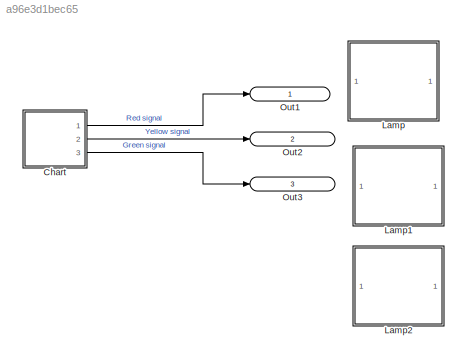
MODEL slx_a96e3d1bec65
KIND model
CONFIG AbsTol = auto
CONFIG FixedStep = auto
CONFIG MaxStep = auto
CONFIG MinStep = auto
CONFIG RelTol = 1e-3
CONFIG SampleTimeConstraint = Unconstrained
CONFIG Solver = VariableStepAuto
CONFIG SolverMode = Auto
CONFIG SolverName = VariableStepAuto
CONFIG StartTime = 0.0
CONFIG StopTime = 10.0
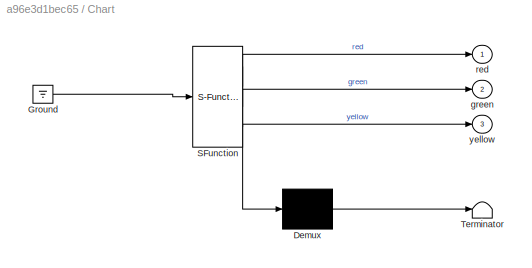
BLOCK [SubSystem] Chart
  ErrorFcn = Stateflow.Translate.translate
  PermitHierarchicalResolution = ExplicitOnly
  Ports = [0, 3]
  RequestExecContextInheritance = off
  SFBlockType = Chart
  TreatAsAtomicUnit = on
  Variant = off
BLOCK [Demux] Chart/ Demux 
  Outputs = 1
  Ports = [1, 1]
BLOCK [Ground] Chart/ Ground 
BLOCK [S-Function] Chart/ SFunction 
  EnableBusSupport = on
  FunctionName = sf_sfun
  PortCounts = [1 4]
  Ports = [1, 4]
  SFunctionDeploymentMode = off
  Tag = Stateflow S-Function trafficstateflow 3
BLOCK [Terminator] Chart/ Terminator 
BLOCK [Outport] Chart/green
  IconDisplay = Port number
  Port = 2
BLOCK [Outport] Chart/red
  IconDisplay = Port number
BLOCK [Outport] Chart/yellow
  IconDisplay = Port number
  Port = 3
BLOCK [SubSystem] Lamp
  DialogController = hmiCreateDDGDialog
  IsWebBlock = on
  MaskHideContents = on
  Ports = []
  RequestExecContextInheritance = off
  Variant = off
BLOCK [SubSystem] Lamp1
  DialogController = hmiCreateDDGDialog
  IsWebBlock = on
  MaskHideContents = on
  Ports = []
  RequestExecContextInheritance = off
  Variant = off
BLOCK [SubSystem] Lamp2
  DialogController = hmiCreateDDGDialog
  IsWebBlock = on
  MaskHideContents = on
  Ports = []
  RequestExecContextInheritance = off
  Variant = off
BLOCK [Outport] Out1
  IconDisplay = Signal name
  OutDataTypeStr = uint8
BLOCK [Outport] Out2
  IconDisplay = Signal name
  OutDataTypeStr = uint8
  Port = 2
BLOCK [Outport] Out3
  IconDisplay = Signal name
  OutDataTypeStr = uint8
  Port = 3
LINE Chart:1 -> Out1:1
LINE Chart:2 -> Out2:1
LINE Chart:3 -> Out3:1
CHART Chart states=3 transitions=4
  STATE_LABEL 'Stop_\nen:\nred=uint8(0);\ngreen=uint8(0);\ndu:\nred=uint8(1);\nyellow=uint8(0);\ngreen=uint8(0);\nex:'
  STATE_LABEL 'Ready_\nen:\nred=uint8(0);\ngreen=uint8(0);\ndu:\nred=uint8(0);\nyellow=uint8(1);\ngreen=uint8(0);\nex:'
  STATE_LABEL 'Green_\nen:\nred=uint8(0);\ngreen=uint8(0);\ndu:\nred=uint8(0);\nyellow=uint8(0);\ngreen=uint8(1);\nex:'
